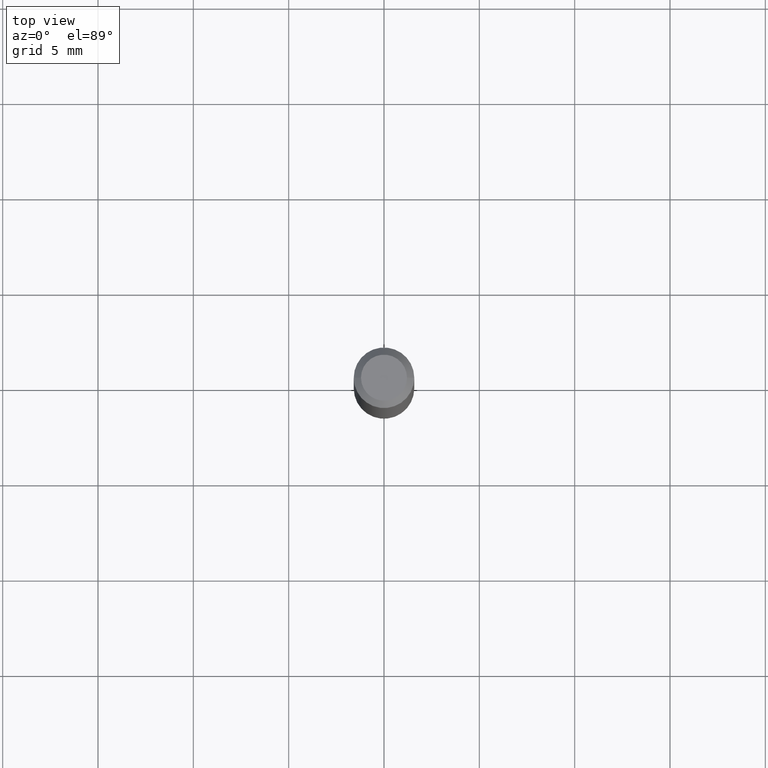
[diagram: clean part render]
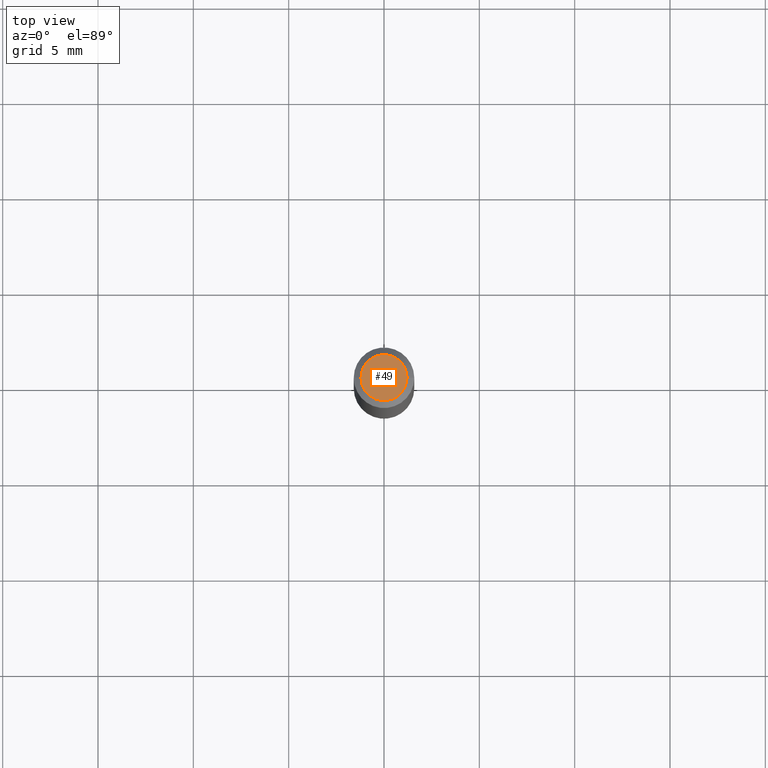
[diagram: same view with one face highlighted and labeled with its STEP entity id]
A machine part, top view. The second image highlights one B-rep face of the part: STEP entity #49.
In plain terms, the highlighted planar face has unit normal (0, -0, -1).
Its self-contained STEP definition (entity closure, byte-faithful):
#23 = CARTESIAN_POINT ( 'NONE',  ( 0.04749999999999999362, -4.035134999187574186E-16, 2.354505479474186932E-16 ) ) ;
#30 = AXIS2_PLACEMENT_3D ( 'NONE', #311, #402, #194 ) ;
#49 = ADVANCED_FACE ( 'NONE', ( #74 ), #221, .F. ) ;
#65 = AXIS2_PLACEMENT_3D ( 'NONE', #112, #361, #116 ) ;
#74 = FACE_OUTER_BOUND ( 'NONE', #442, .T. ) ;
#102 = DIRECTION ( 'NONE',  ( 1.000000000000000000, -6.982962677686267499E-15, 4.852736867747366768E-29 ) ) ;
#112 = CARTESIAN_POINT ( 'NONE',  ( 3.316907271900976096E-16, 0.04749999999999999362, -4.812008962134135024E-17 ) ) ;
#116 = DIRECTION ( 'NONE',  ( -1.000000000000000000, 6.982962677686265922E-15, -4.876176775795935793E-29 ) ) ;
#138 = DIRECTION ( 'NONE',  ( -2.445468806185136597E-29, 3.491481338843145583E-15, 1.000000000000000000 ) ) ;
#152 = EDGE_CURVE ( 'NONE', #377, #319, #240, .T. ) ;
#194 = DIRECTION ( 'NONE',  ( 1.000000000000000000, -6.982962677686267499E-15, 4.852736867747366768E-29 ) ) ;
#221 = PLANE ( 'NONE',  #65 ) ;
#240 = CIRCLE ( 'NONE', #30, 0.04749999999999999362 ) ;
#241 = CIRCLE ( 'NONE', #392, 0.04749999999999999362 ) ;
#311 = CARTESIAN_POINT ( 'NONE',  ( -5.757869704046039586E-45, 8.220711943787967025E-31, 2.354505479474161294E-16 ) ) ;
#317 = CARTESIAN_POINT ( 'NONE',  ( -5.757869704046039586E-45, 8.220711943787967025E-31, 2.354505479474161294E-16 ) ) ;
#319 = VERTEX_POINT ( 'NONE', #353 ) ;
#353 = CARTESIAN_POINT ( 'NONE',  ( -0.04749999999999999362, 3.578768372314215436E-16, 2.354505479474137135E-16 ) ) ;
#361 = DIRECTION ( 'NONE',  ( 2.438088387897960049E-29, -3.491481338843145188E-15, -1.000000000000000000 ) ) ;
#377 = VERTEX_POINT ( 'NONE', #23 ) ;
#382 = ORIENTED_EDGE ( 'NONE', *, *, #396, .T. ) ;
#392 = AXIS2_PLACEMENT_3D ( 'NONE', #317, #138, #102 ) ;
#396 = EDGE_CURVE ( 'NONE', #319, #377, #241, .T. ) ;
#402 = DIRECTION ( 'NONE',  ( -2.445468806185136597E-29, 3.491481338843145583E-15, 1.000000000000000000 ) ) ;
#442 = EDGE_LOOP ( 'NONE', ( #382, #453 ) ) ;
#453 = ORIENTED_EDGE ( 'NONE', *, *, #152, .T. ) ;